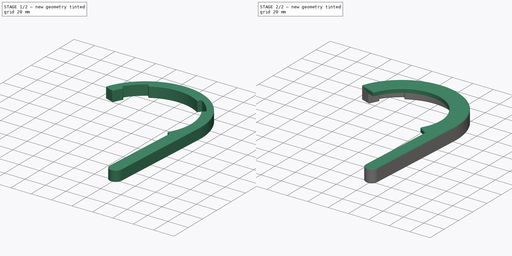
[diagram: build sequence overview — one tinted view per stage of 2, left to right]
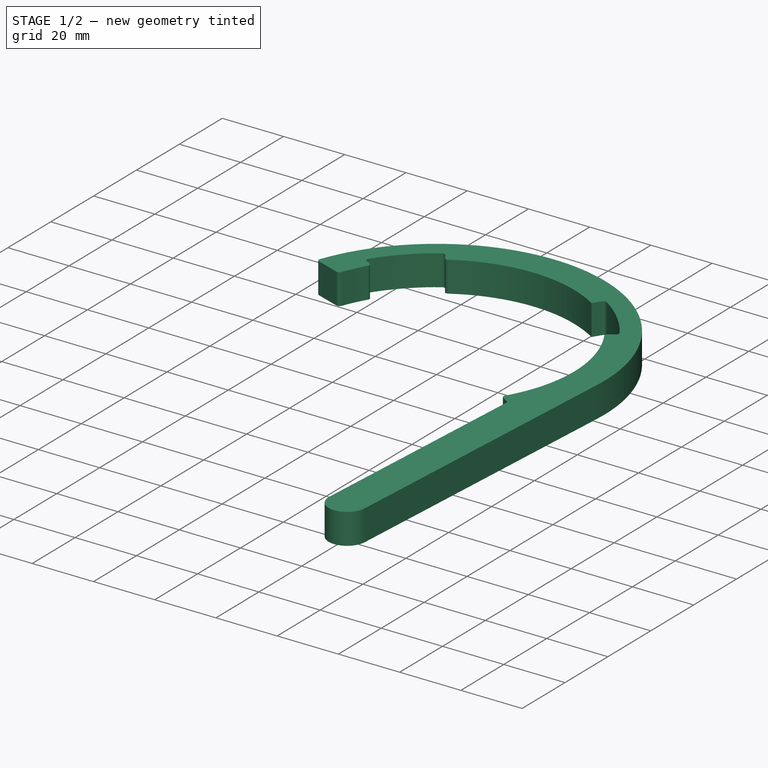
[diagram: stage 1 of 2 — iso view after this stage's code; geometry added in this stage tinted green]
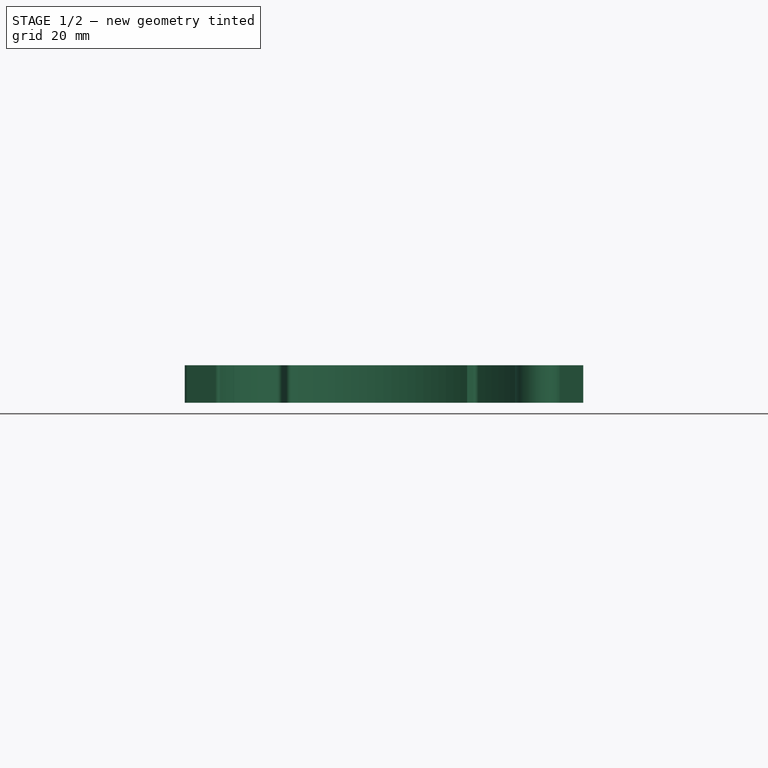
[diagram: stage 1 of 2 — front view after this stage's code; geometry added in this stage tinted green]
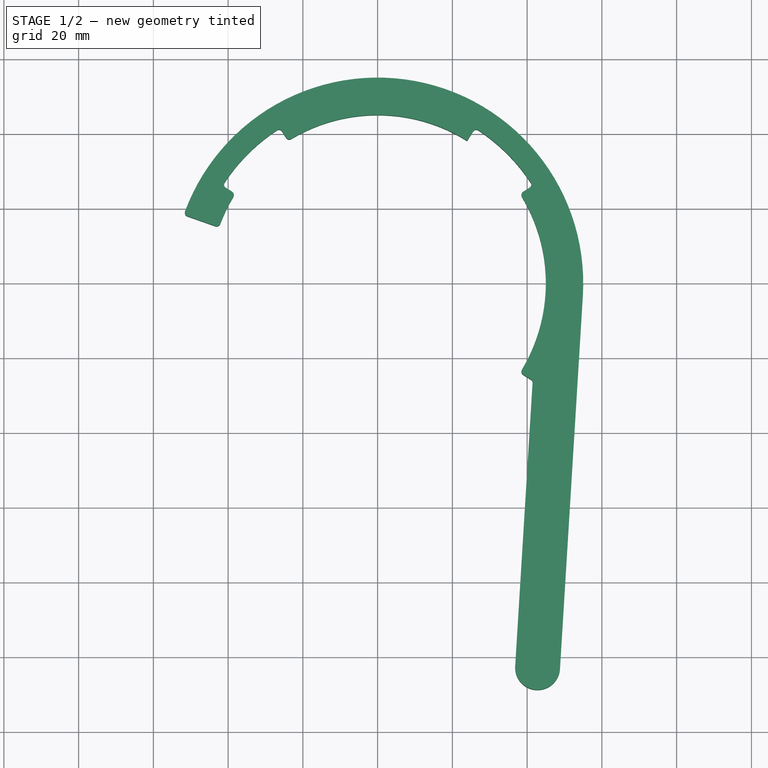
[diagram: stage 1 of 2 — top view after this stage's code; geometry added in this stage tinted green]
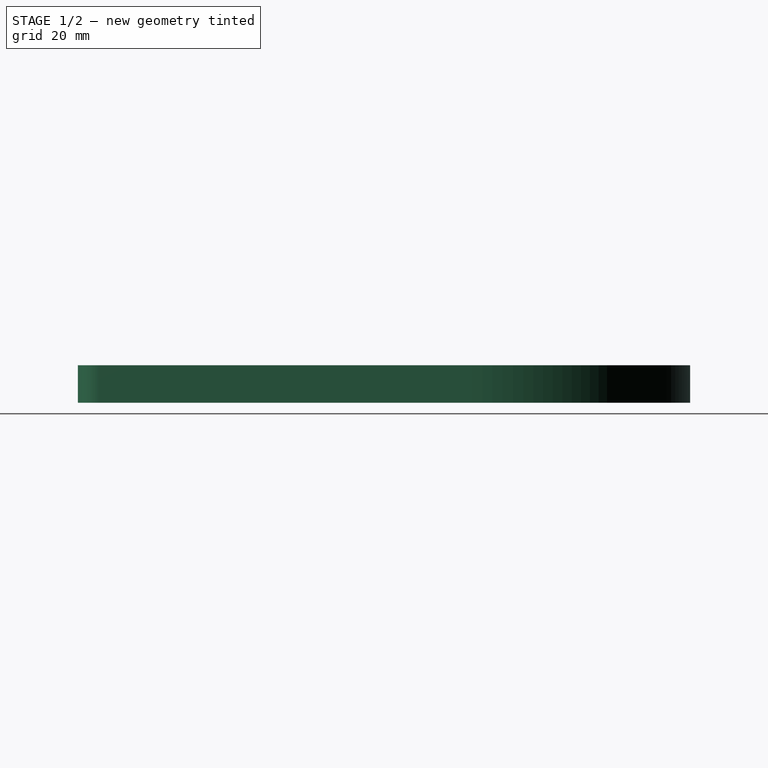
[diagram: stage 1 of 2 — right view after this stage's code; geometry added in this stage tinted green]
FCSTD DOCUMENT  (FreeCAD 1.0R39109 (Git))
Label: wrench
License: All rights reserved
LicenseURL: http://en.wikipedia.org/wiki/All_rights_reserved
objects: Sketcher::SketchObject×4, PartDesign::Pad×2, PartDesign::Fillet×1, PartDesign::Chamfer×1, PartDesign::Body×1
note: 21 computed .brp shape members not serialized (recipe doc carries the construction recipe); baked Part::Feature solids carry a one-line shape summary decoded from their .brp

FEATURE [Sketcher::SketchObject] Sketch
  ArcFitTolerance = 1e-06
  AttachmentSupport = -> [XY_Plane]
  FullyConstrained = true
  MakeInternals = false
  MapMode = 5
  sketch-geometry (26):
    g0: ArcOfCircle CenterX=0 CenterY=0 CenterZ=0 NormalX=0 NormalY=0 NormalZ=1 AngleXU=0 Radius=49 StartAngle=2.1321 EndAngle=2.58029
    g1: ArcOfCircle CenterX=0 CenterY=0 CenterZ=0 NormalX=0 NormalY=0 NormalZ=1 AngleXU=0 Radius=55 StartAngle=6.22195 EndAngle=9.08615
    g2: LineSegment StartX=26.0823 StartY=41.4815 StartZ=0 EndX=23.9531 EndY=38.0953 EndZ=0
    g3: LineSegment StartX=-41.4815 StartY=26.0823 StartZ=0 EndX=-38.0953 EndY=23.9531 EndZ=0
    g4: ArcOfCircle CenterX=0 CenterY=0 CenterZ=0 NormalX=0 NormalY=0 NormalZ=1 AngleXU=0 Radius=45 StartAngle=1.00949 EndAngle=2.1321
    g5: ArcOfCircle CenterX=0 CenterY=0 CenterZ=0 NormalX=0 NormalY=0 NormalZ=1 AngleXU=0 Radius=45 StartAngle=5.72188 EndAngle=6.84449
    g6: ArcOfCircle CenterX=0 CenterY=0 CenterZ=0 NormalX=0 NormalY=0 NormalZ=1 AngleXU=0 Radius=49 StartAngle=0.561305 EndAngle=1.00949
    g7: ArcOfCircle CenterX=0 CenterY=0 CenterZ=0 NormalX=0 NormalY=0 NormalZ=1 AngleXU=0 Radius=45 StartAngle=2.58029 EndAngle=2.80297
    g8: LineSegment StartX=38.0953 StartY=23.9531 StartZ=0 EndX=41.4815 EndY=26.0823 EndZ=0
    g9: LineSegment StartX=-23.9531 StartY=38.0953 StartZ=0 EndX=-26.0823 EndY=41.4815 EndZ=0
    g10: LineSegment StartX=38.0953 StartY=-23.9531 StartZ=0 EndX=41.4815 EndY=-26.0823 EndZ=0
    g11: LineSegment [constr] StartX=23.9531 StartY=38.0953 StartZ=0 EndX=-23.9531 EndY=38.0953 EndZ=0
    g12: LineSegment [constr] StartX=-23.9531 StartY=38.0953 StartZ=0 EndX=-38.0953 EndY=23.9531 EndZ=0
    g13: LineSegment [constr] StartX=-38.0953 StartY=23.9531 StartZ=0 EndX=-38.0953 EndY=-23.9531 EndZ=0
    g14: LineSegment [constr] StartX=-38.0953 StartY=-23.9531 StartZ=0 EndX=-23.9531 EndY=-38.0953 EndZ=0
    g15: LineSegment [constr] StartX=-23.9531 StartY=-38.0953 StartZ=0 EndX=23.9531 EndY=-38.0953 EndZ=0
    g16: LineSegment [constr] StartX=23.9531 StartY=-38.0953 StartZ=0 EndX=38.0953 EndY=-23.9531 EndZ=0
    g17: LineSegment [constr] StartX=38.0953 StartY=-23.9531 StartZ=0 EndX=38.0953 EndY=23.9531 EndZ=0
    g18: LineSegment [constr] StartX=38.0953 StartY=23.9531 StartZ=0 EndX=23.9531 EndY=38.0953 EndZ=0
    g19: LineSegment StartX=-42.4446 StartY=14.9485 StartZ=0 EndX=-51.8767 EndY=18.2704 EndZ=0
    g20: LineSegment StartX=54.8969 StartY=-3.36606 StartZ=0 EndX=48.7768 EndY=-103.179 EndZ=0
    g21: LineSegment StartX=41.4815 StartY=-26.0823 StartZ=0 EndX=36.7993 EndY=-102.444 EndZ=0
    g22: ArcOfCircle CenterX=42.788 CenterY=-102.811 CenterZ=0 NormalX=0 NormalY=0 NormalZ=1 AngleXU=0 Radius=6 StartAngle=3.08035 EndAngle=6.22195
    g23: LineSegment [constr] StartX=-42.4446 StartY=14.9485 StartZ=0 EndX=-38.0953 EndY=23.9531 EndZ=0
    g24: ArcOfCircle [constr] CenterX=0 CenterY=1.8e-15 CenterZ=0 NormalX=0 NormalY=0 NormalZ=1 AngleXU=0 Radius=45 StartAngle=2.80297 EndAngle=5.72188
    g25: ArcOfCircle [constr] CenterX=0 CenterY=1.8e-15 CenterZ=0 NormalX=0 NormalY=0 NormalZ=1 AngleXU=0 Radius=49 StartAngle=5.72188 EndAngle=6.84449
  constraints (71):
    c: Diameter(g0) = 98
    c: Diameter(g1) = 110
    c: PointOnObject(g4,g9)
    c: PointOnObject(g5,g8)
    c: Equal(g0,g6)
    c: Coincident(g0,g6)
    c: Coincident(g2,g6)
    c: Coincident(g8,g6)
    c: Equal(g5,g4)
    c: Coincident(g2,g4)
    c: PointOnObject(g8,g5)
    c: Coincident(g3,g7)
    c: PointOnObject(g9,g4)
    c: Coincident(g3,g0)
    c: Coincident(g9,g0)
    c: Coincident(g0,g-1)
    c: Coincident(g7,g0)
    c: Coincident(g1,g0)
    c: Coincident(g5,g0)
    c: Coincident(g4,g0)
    c: Perpendicular(g4,g9)
    c: Perpendicular(g4,g2)
    c: Perpendicular(g5,g8)
    c: Coincident(g10,g5)
    c: Perpendicular(g5,g10)
    c: Perpendicular(g7,g3)
    c: Diameter(g4) = 90
    c: Coincident(g2,g11)
    c: Coincident(g11,g4)
    c: Coincident(g11,g12)
    c: PointOnObject(g12,g7)
    c: Coincident(g12,g13)
    c: Coincident(g13,g14)
    c: Coincident(g14,g15)
    c: Horizontal(g15)
    c: Coincident(g15,g16)
    c: Coincident(g16,g5)
    c: Coincident(g16,g17)
    c: Coincident(g17,g5)
    c: Coincident(g17,g18)
    c: Coincident(g18,g11)
    c: Equal(g14,g12)
    c: Equal(g12,g18)
    c: Equal(g18,g16)
    c: Equal(g17,g11)
    c: Equal(g11,g13)
    c: Equal(g13,g15)
    c: Distance(g14) = 20
    c: PointOnObject(g3,g10)
    c: Parallel(g21,g20)
    c: Tangent(g22,g20) = 1.5708
    c: Tangent(g22,g21) = -1.5708
    c: Diameter(g22) = 12
    c: Coincident(g23,g19)
    c: Coincident(g23,g3)
    c: Distance(g23) = 10
    c: Distance(g20) = 100
    c: Tangent(g1,g20) = 1.5708
    c: Coincident(g1,g19)
    c: Perpendicular(g7,g19) = 4.71239
    c: PointOnObject(g24,g-2)
    c: Coincident(g24,g7)
    c: Coincident(g24,g5)
    c: Equal(g24,g5)
    c: PointOnObject(g13,g24)
    c: PointOnObject(g14,g24)
    c: PointOnObject(g15,g24)
    c: Coincident(g10,g21)
    c: Coincident(g25,g24)
    c: Coincident(g25,g6)
    c: Coincident(g25,g10)
FEATURE [Sketcher::SketchObject] Sketch001  label="master"
  ArcFitTolerance = 1e-06
  AttachmentSupport = -> [XY_Plane]
  FullyConstrained = true
  MakeInternals = false
  MapMode = 5
  sketch-geometry (25):
    g0: ArcOfCircle CenterX=0 CenterY=0 CenterZ=0 NormalX=0 NormalY=0 NormalZ=1 AngleXU=0 Radius=49 StartAngle=2.1321 EndAngle=2.58029
    g1: Circle CenterX=0 CenterY=0 CenterZ=0 NormalX=0 NormalY=0 NormalZ=1 AngleXU=0 Radius=55
    g2: LineSegment StartX=-41.4815 StartY=-26.0823 StartZ=0 EndX=-38.0953 EndY=-23.9531 EndZ=0
    g3: LineSegment StartX=26.0823 StartY=41.4815 StartZ=0 EndX=23.9531 EndY=38.0953 EndZ=0
    g4: LineSegment StartX=-41.4815 StartY=26.0823 StartZ=0 EndX=-38.0953 EndY=23.9531 EndZ=0
    g5: ArcOfCircle CenterX=0 CenterY=0 CenterZ=0 NormalX=0 NormalY=0 NormalZ=1 AngleXU=0 Radius=45 StartAngle=1.00949 EndAngle=2.1321
    g6: ArcOfCircle CenterX=0 CenterY=0 CenterZ=0 NormalX=0 NormalY=0 NormalZ=1 AngleXU=0 Radius=45 StartAngle=5.72188 EndAngle=6.84449
    g7: ArcOfCircle CenterX=0 CenterY=0 CenterZ=0 NormalX=0 NormalY=0 NormalZ=1 AngleXU=0 Radius=45 StartAngle=4.15108 EndAngle=5.27369
    g8: ArcOfCircle CenterX=0 CenterY=0 CenterZ=0 NormalX=0 NormalY=0 NormalZ=1 AngleXU=0 Radius=49 StartAngle=0.561305 EndAngle=1.00949
    g9: LineSegment StartX=26.0823 StartY=-41.4815 StartZ=0 EndX=23.9531 EndY=-38.0953 EndZ=0
    g10: ArcOfCircle CenterX=0 CenterY=0 CenterZ=0 NormalX=0 NormalY=0 NormalZ=1 AngleXU=0 Radius=49 StartAngle=5.27369 EndAngle=5.72188
    g11: ArcOfCircle CenterX=0 CenterY=0 CenterZ=0 NormalX=0 NormalY=0 NormalZ=1 AngleXU=0 Radius=45 StartAngle=2.58029 EndAngle=3.7029
    g12: ArcOfCircle CenterX=0 CenterY=0 CenterZ=0 NormalX=0 NormalY=0 NormalZ=1 AngleXU=0 Radius=49 StartAngle=3.7029 EndAngle=4.15108
    g13: LineSegment StartX=-23.9531 StartY=-38.0953 StartZ=0 EndX=-26.0823 EndY=-41.4815 EndZ=0
    g14: LineSegment StartX=38.0953 StartY=23.9531 StartZ=0 EndX=41.4815 EndY=26.0823 EndZ=0
    g15: LineSegment StartX=-23.9531 StartY=38.0953 StartZ=0 EndX=-26.0823 EndY=41.4815 EndZ=0
    g16: LineSegment StartX=38.0953 StartY=-23.9531 StartZ=0 EndX=41.4815 EndY=-26.0823 EndZ=0
    g17: LineSegment [constr] StartX=23.9531 StartY=38.0953 StartZ=0 EndX=-23.9531 EndY=38.0953 EndZ=0
    g18: LineSegment [constr] StartX=-23.9531 StartY=38.0953 StartZ=0 EndX=-38.0953 EndY=23.9531 EndZ=0
    g19: LineSegment [constr] StartX=-38.0953 StartY=23.9531 StartZ=0 EndX=-38.0953 EndY=-23.9531 EndZ=0
    g20: LineSegment [constr] StartX=-38.0953 StartY=-23.9531 StartZ=0 EndX=-23.9531 EndY=-38.0953 EndZ=0
    g21: LineSegment [constr] StartX=-23.9531 StartY=-38.0953 StartZ=0 EndX=23.9531 EndY=-38.0953 EndZ=0
    g22: LineSegment [constr] StartX=23.9531 StartY=-38.0953 StartZ=0 EndX=38.0953 EndY=-23.9531 EndZ=0
    g23: LineSegment [constr] StartX=38.0953 StartY=-23.9531 StartZ=0 EndX=38.0953 EndY=23.9531 EndZ=0
    g24: LineSegment [constr] StartX=38.0953 StartY=23.9531 StartZ=0 EndX=23.9531 EndY=38.0953 EndZ=0
  constraints (71):
    c: Diameter(g0) = 98
    c: Diameter(g1) = 110
    c: PointOnObject(g5,g15)
    c: PointOnObject(g6,g14)
    c: PointOnObject(g7,g13)
    c: Equal(g0,g8)
    c: Coincident(g0,g8)
    c: Coincident(g3,g8)
    c: Coincident(g14,g8)
    c: PointOnObject(g9,g10)
    c: Equal(g0,g10)
    c: PointOnObject(g10,g9)
    c: Coincident(g0,g10)
    c: Equal(g7,g11)
    c: Equal(g7,g6)
    c: Equal(g6,g5)
    c: Equal(g0,g12)
    c: Coincident(g0,g12)
    c: Coincident(g3,g5)
    c: PointOnObject(g13,g7)
    c: PointOnObject(g14,g6)
    c: Coincident(g9,g7)
    c: Coincident(g2,g11)
    c: Coincident(g4,g11)
    c: PointOnObject(g15,g5)
    c: Coincident(g13,g12)
    c: Coincident(g2,g12)
    c: Coincident(g4,g0)
    c: Coincident(g15,g0)
    c: Coincident(g7,g0)
    c: Coincident(g0,g-1)
    c: Coincident(g11,g0)
    c: Coincident(g1,g0)
    c: Coincident(g6,g0)
    c: Coincident(g5,g0)
    c: Perpendicular(g5,g15)
    c: Perpendicular(g5,g3)
    c: Perpendicular(g6,g14)
    c: Coincident(g16,g6)
    c: Perpendicular(g6,g16)
    c: Perpendicular(g7,g9)
    c: Perpendicular(g7,g13)
    c: Perpendicular(g11,g2)
    c: Perpendicular(g11,g4)
    c: Diameter(g5) = 90
    c: Coincident(g3,g17)
    c: Coincident(g17,g5)
    c: Coincident(g17,g18)
    c: PointOnObject(g18,g11)
    c: Coincident(g18,g19)
    c: Coincident(g19,g2)
    c: Coincident(g19,g20)
    c: Coincident(g20,g7)
    c: Coincident(g20,g21)
    c: Coincident(g21,g7)
    c: Horizontal(g21)
    c: Coincident(g21,g22)
    c: Coincident(g22,g6)
    c: Coincident(g22,g23)
    c: Coincident(g23,g6)
    c: Coincident(g23,g24)
    c: Coincident(g24,g17)
    c: Equal(g20,g18)
    c: Equal(g18,g24)
    c: Equal(g24,g22)
    c: Equal(g23,g17)
    c: Equal(g17,g19)
    c: Equal(g19,g21)
    c: Coincident(g10,g16)
    c: Distance(g20) = 20
    c: PointOnObject(g4,g16)
FEATURE [Sketcher::SketchObject] Sketch002  label="master 2"
  ArcFitTolerance = 1e-06
  AttachmentSupport = -> [XY_Plane]
  FullyConstrained = true
  MakeInternals = false
  MapMode = 5
  sketch-geometry (30):
    g0: ArcOfCircle CenterX=0 CenterY=0 CenterZ=0 NormalX=0 NormalY=0 NormalZ=1 AngleXU=0 Radius=49 StartAngle=2.1321 EndAngle=2.58029
    g1: Circle CenterX=0 CenterY=0 CenterZ=0 NormalX=0 NormalY=0 NormalZ=1 AngleXU=0 Radius=55
    g2: LineSegment StartX=-41.4815 StartY=-26.0823 StartZ=0 EndX=-38.0953 EndY=-23.9531 EndZ=0
    g3: LineSegment StartX=26.0823 StartY=41.4815 StartZ=0 EndX=23.9531 EndY=38.0953 EndZ=0
    g4: LineSegment StartX=-41.4815 StartY=26.0823 StartZ=0 EndX=-38.0953 EndY=23.9531 EndZ=0
    g5: ArcOfCircle CenterX=0 CenterY=0 CenterZ=0 NormalX=0 NormalY=0 NormalZ=1 AngleXU=0 Radius=45 StartAngle=1.00949 EndAngle=2.1321
    g6: ArcOfCircle CenterX=0 CenterY=0 CenterZ=0 NormalX=0 NormalY=0 NormalZ=1 AngleXU=0 Radius=45 StartAngle=5.72188 EndAngle=6.84449
    g7: ArcOfCircle CenterX=0 CenterY=0 CenterZ=0 NormalX=0 NormalY=0 NormalZ=1 AngleXU=0 Radius=45 StartAngle=4.15108 EndAngle=5.27369
    g8: ArcOfCircle CenterX=0 CenterY=0 CenterZ=0 NormalX=0 NormalY=0 NormalZ=1 AngleXU=0 Radius=49 StartAngle=0.561305 EndAngle=1.00949
    g9: LineSegment StartX=26.0823 StartY=-41.4815 StartZ=0 EndX=23.9531 EndY=-38.0953 EndZ=0
    g10: ArcOfCircle CenterX=0 CenterY=0 CenterZ=0 NormalX=0 NormalY=0 NormalZ=1 AngleXU=0 Radius=49 StartAngle=5.27369 EndAngle=5.72188
    g11: ArcOfCircle CenterX=0 CenterY=0 CenterZ=0 NormalX=0 NormalY=0 NormalZ=1 AngleXU=0 Radius=45 StartAngle=2.58029 EndAngle=3.7029
    g12: ArcOfCircle CenterX=0 CenterY=0 CenterZ=0 NormalX=0 NormalY=0 NormalZ=1 AngleXU=0 Radius=49 StartAngle=3.7029 EndAngle=4.15108
    g13: LineSegment StartX=-23.9531 StartY=-38.0953 StartZ=0 EndX=-26.0823 EndY=-41.4815 EndZ=0
    g14: LineSegment StartX=38.0953 StartY=23.9531 StartZ=0 EndX=41.4815 EndY=26.0823 EndZ=0
    g15: LineSegment StartX=-23.9531 StartY=38.0953 StartZ=0 EndX=-26.0823 EndY=41.4815 EndZ=0
    g16: LineSegment StartX=38.0953 StartY=-23.9531 StartZ=0 EndX=41.4815 EndY=-26.0823 EndZ=0
    g17: LineSegment [constr] StartX=23.9531 StartY=38.0953 StartZ=0 EndX=-23.9531 EndY=38.0953 EndZ=0
    g18: LineSegment [constr] StartX=-23.9531 StartY=38.0953 StartZ=0 EndX=-38.0953 EndY=23.9531 EndZ=0
    g19: LineSegment [constr] StartX=-38.0953 StartY=23.9531 StartZ=0 EndX=-38.0953 EndY=-23.9531 EndZ=0
    g20: LineSegment [constr] StartX=-38.0953 StartY=-23.9531 StartZ=0 EndX=-23.9531 EndY=-38.0953 EndZ=0
    g21: LineSegment [constr] StartX=-23.9531 StartY=-38.0953 StartZ=0 EndX=23.9531 EndY=-38.0953 EndZ=0
    g22: LineSegment [constr] StartX=23.9531 StartY=-38.0953 StartZ=0 EndX=38.0953 EndY=-23.9531 EndZ=0
    g23: LineSegment [constr] StartX=38.0953 StartY=-23.9531 StartZ=0 EndX=38.0953 EndY=23.9531 EndZ=0
    g24: LineSegment [constr] StartX=38.0953 StartY=23.9531 StartZ=0 EndX=23.9531 EndY=38.0953 EndZ=0
    g25: LineSegment StartX=-42.4446 StartY=14.9485 StartZ=0 EndX=-51.8767 EndY=18.2704 EndZ=0
    g26: LineSegment StartX=54.8969 StartY=-3.36606 StartZ=0 EndX=48.7768 EndY=-103.179 EndZ=0
    g27: LineSegment StartX=41.4815 StartY=-26.0823 StartZ=0 EndX=36.7993 EndY=-102.444 EndZ=0
    g28: ArcOfCircle CenterX=42.788 CenterY=-102.811 CenterZ=0 NormalX=0 NormalY=0 NormalZ=1 AngleXU=0 Radius=6 StartAngle=3.08035 EndAngle=6.22195
    g29: LineSegment [constr] StartX=-42.4446 StartY=14.9485 StartZ=0 EndX=-38.0953 EndY=23.9531 EndZ=0
  constraints (84):
    c: Diameter(g0) = 98
    c: Diameter(g1) = 110
    c: PointOnObject(g5,g15)
    c: PointOnObject(g6,g14)
    c: PointOnObject(g7,g13)
    c: Equal(g0,g8)
    c: Coincident(g0,g8)
    c: Coincident(g3,g8)
    c: Coincident(g14,g8)
    c: PointOnObject(g9,g10)
    c: Equal(g0,g10)
    c: PointOnObject(g10,g9)
    c: Coincident(g0,g10)
    c: Equal(g7,g11)
    c: Equal(g7,g6)
    c: Equal(g6,g5)
    c: Equal(g0,g12)
    c: Coincident(g0,g12)
    c: Coincident(g3,g5)
    c: PointOnObject(g13,g7)
    c: PointOnObject(g14,g6)
    c: Coincident(g9,g7)
    c: Coincident(g2,g11)
    c: Coincident(g4,g11)
    c: PointOnObject(g15,g5)
    c: Coincident(g13,g12)
    c: Coincident(g2,g12)
    c: Coincident(g4,g0)
    c: Coincident(g15,g0)
    c: Coincident(g7,g0)
    c: Coincident(g0,g-1)
    c: Coincident(g11,g0)
    c: Coincident(g1,g0)
    c: Coincident(g6,g0)
    c: Coincident(g5,g0)
    c: Perpendicular(g5,g15)
    c: Perpendicular(g5,g3)
    c: Perpendicular(g6,g14)
    c: Coincident(g16,g6)
    c: Perpendicular(g6,g16)
    c: Perpendicular(g7,g9)
    c: Perpendicular(g7,g13)
    c: Perpendicular(g11,g2)
    c: Perpendicular(g11,g4)
    c: Diameter(g5) = 90
    c: Coincident(g3,g17)
    c: Coincident(g17,g5)
    c: Coincident(g17,g18)
    c: PointOnObject(g18,g11)
    c: Coincident(g18,g19)
    c: Coincident(g19,g2)
    c: Coincident(g19,g20)
    c: Coincident(g20,g7)
    c: Coincident(g20,g21)
    c: Coincident(g21,g7)
    c: Horizontal(g21)
    c: Coincident(g21,g22)
    c: Coincident(g22,g6)
    c: Coincident(g22,g23)
    c: Coincident(g23,g6)
    c: Coincident(g23,g24)
    c: Coincident(g24,g17)
    c: Equal(g20,g18)
    c: Equal(g18,g24)
    c: Equal(g24,g22)
    c: Equal(g23,g17)
    c: Equal(g17,g19)
    c: Equal(g19,g21)
    c: Coincident(g10,g16)
    c: Distance(g20) = 20
    c: PointOnObject(g4,g16)
    c: PointOnObject(g25,g11)
    c: PointOnObject(g25,g1)
    c: Perpendicular(g11,g25)
    c: Tangent(g26,g1) = 1.5708
    c: Coincident(g27,g10)
    c: Parallel(g27,g26)
    c: Tangent(g28,g26) = 1.5708
    c: Tangent(g28,g27) = -1.5708
    c: Diameter(g28) = 12
    c: Coincident(g29,g25)
    c: Coincident(g29,g4)
    c: Distance(g29) = 10
    c: Distance(g26) = 100
FEATURE [PartDesign::Pad] Pad
  Direction = (0,0,1)
  Length = 10
  Length2 = 10
  Profile = -> Sketch
  ReferenceAxis = -> Sketch [N_Axis]
  Refine = true
  Suppressed = false
  Type = 0
FEATURE [PartDesign::Fillet] Fillet
  Base = -> Pad [Edge26,Edge29,Edge23,Edge20,Edge17,Edge14,Edge8,Edge5,Edge2,Edge1,Edge41]
  BaseFeature = -> Pad
  Radius = 1
  Refine = true
  SupportTransform = false
  Suppressed = false
  UseAllEdges = false
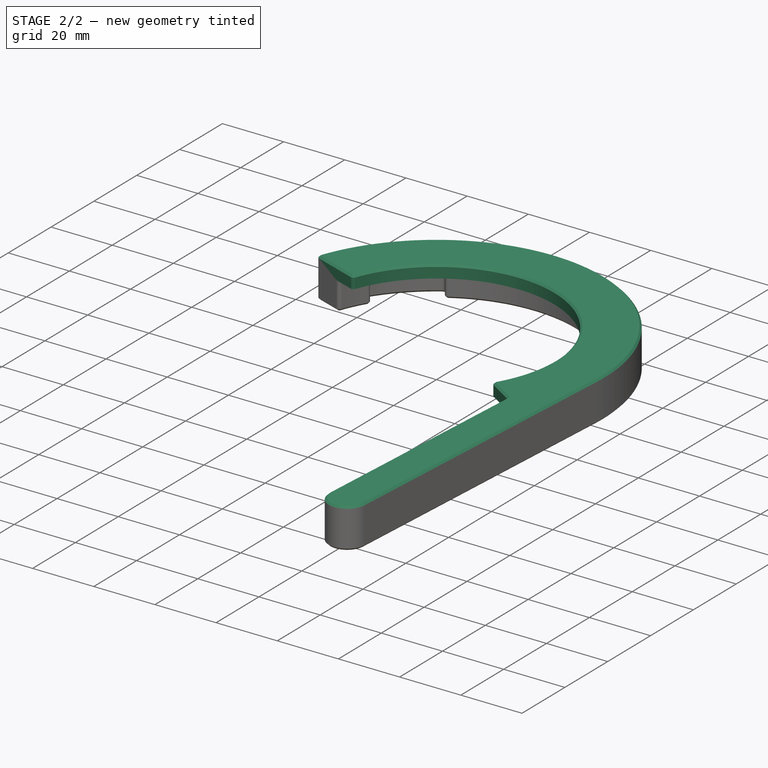
[diagram: stage 2 of 2 — iso view after this stage's code; geometry added in this stage tinted green]
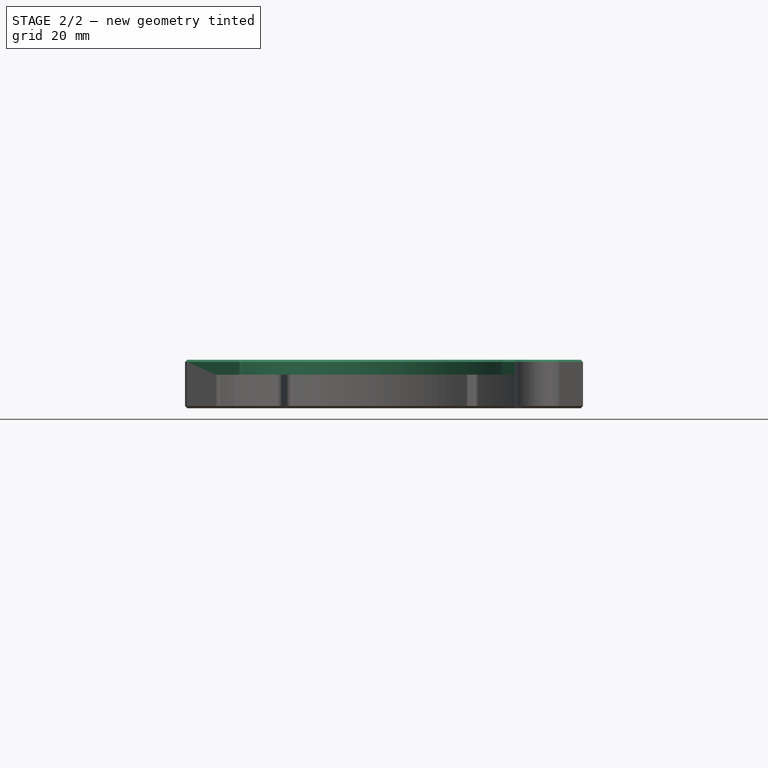
[diagram: stage 2 of 2 — front view after this stage's code; geometry added in this stage tinted green]
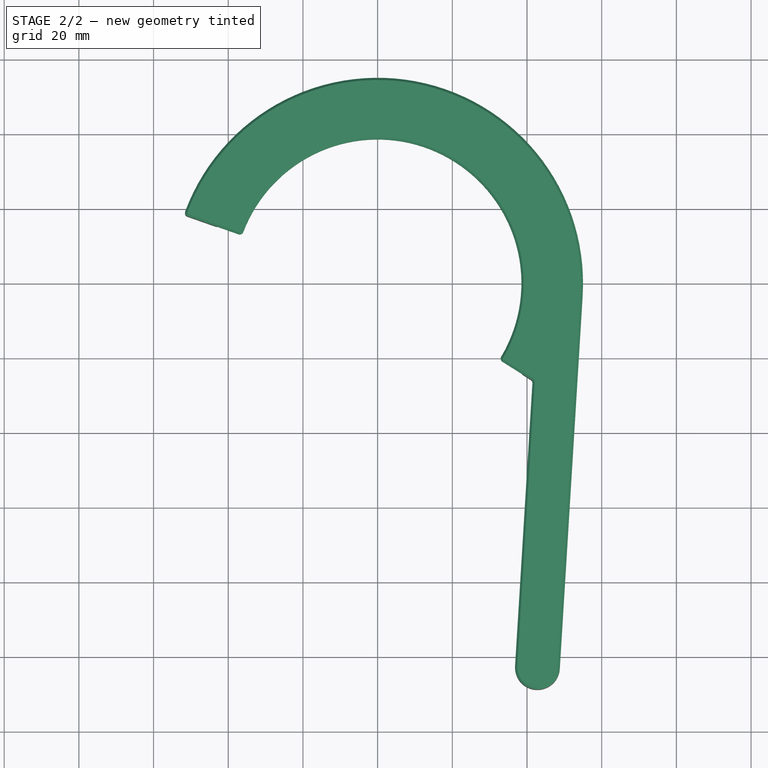
[diagram: stage 2 of 2 — top view after this stage's code; geometry added in this stage tinted green]
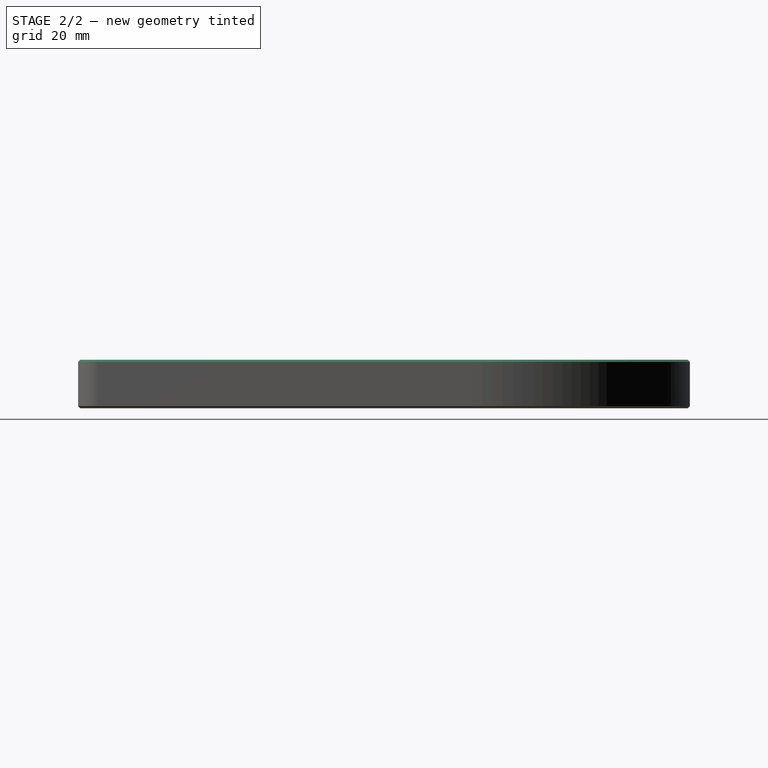
[diagram: stage 2 of 2 — right view after this stage's code; geometry added in this stage tinted green]
FEATURE [Sketcher::SketchObject] Sketch003
  ArcFitTolerance = 1e-06
  AttachmentOffset = pos=(0,0,-1) rot=(0,0,1;0rad)
  AttachmentSupport = -> [Fillet]
  ExternalGeometry = -> [Fillet]
  FullyConstrained = true
  MakeInternals = false
  MapMode = 5
  Placement = pos=(0,0,9) rot=(0,0,1;0rad)
  sketch-geometry (12):
    g0: ArcOfCircle CenterX=0 CenterY=0 CenterZ=0 NormalX=0 NormalY=0 NormalZ=1 AngleXU=0 Radius=38.5 StartAngle=5.7472 EndAngle=9.06084
    g1: ArcOfCircle CenterX=0 CenterY=0 CenterZ=0 NormalX=0 NormalY=0 NormalZ=1 AngleXU=0 Radius=55 StartAngle=6.22195 EndAngle=9.06764
    g2: LineSegment StartX=-37.245 StartY=13.1172 StartZ=0 EndX=-50.9248 EndY=17.9351 EndZ=0
    g3: LineSegment StartX=33.4284 StartY=-21.0188 StartZ=0 EndX=40.9794 EndY=-25.7666 EndZ=0
    g4: LineSegment StartX=41.4452 StartY=-26.6743 StartZ=0 EndX=36.7993 EndY=-102.444 EndZ=0
    g5: ArcOfCircle CenterX=42.788 CenterY=-102.811 CenterZ=0 NormalX=0 NormalY=0 NormalZ=1 AngleXU=0 Radius=6 StartAngle=3.08035 EndAngle=6.22195
    g6: LineSegment StartX=48.7768 StartY=-103.179 StartZ=0 EndX=54.8969 EndY=-3.36599 EndZ=0
    g7: ArcOfCircle CenterX=33.9607 CenterY=-20.1722 CenterZ=0 NormalX=0 NormalY=0 NormalZ=1 AngleXU=0 Radius=1 StartAngle=2.60561 EndAngle=4.15108
    g8: ArcOfCircle CenterX=40.4471 CenterY=-26.6131 CenterZ=0 NormalX=0 NormalY=0 NormalZ=1 AngleXU=0 Radius=1 StartAngle=6.22195 EndAngle=7.29268
    g9: GeomPoint [constr] X=41.4815 Y=-26.0823 Z=0
    g10: ArcOfCircle CenterX=-36.9128 CenterY=14.0605 CenterZ=0 NormalX=0 NormalY=0 NormalZ=1 AngleXU=0 Radius=1 StartAngle=4.37377 EndAngle=5.91924
    g11: ArcOfCircle CenterX=-50.5926 CenterY=18.8783 CenterZ=0 NormalX=0 NormalY=0 NormalZ=1 AngleXU=0 Radius=1 StartAngle=2.78445 EndAngle=4.37377
  constraints (28):
    c: Coincident(g0,g-1)
    c: Coincident(g1,g0)
    c: Perpendicular(g0,g2)
    c: PointOnObject(g1,g-4)
    c: Diameter(g0) = 77
    c: Tangent(g4,g5) = -1.5708
    c: Tangent(g5,g6) = -1.5708
    c: PointOnObject(g-5,g3)
    c: Tangent(g3,g7) = -1.5708
    c: Tangent(g0,g7) = 1.5708
    c: PointOnObject(g9,g3)
    c: PointOnObject(g9,g4)
    c: Tangent(g3,g8) = 1.5708
    c: Tangent(g4,g8) = 1.5708
    c: Equal(g-7,g8)
    c: Equal(g8,g7)
    c: PointOnObject(g-5,g3)
    c: PointOnObject(g4,g-6)
    c: PointOnObject(g4,g-6)
    c: Coincident(g6,g1)
    c: Coincident(g5,g-4)
    c: Tangent(g2,g10) = 1.5708
    c: Tangent(g0,g10) = 1.5708
    c: Equal(g10,g7)
    c: Tangent(g2,g11) = 1.5708
    c: Tangent(g1,g11) = -1.5708
    c: Equal(g10,g11)
    c: Coincident(g1,g-3)
FEATURE [PartDesign::Pad] Pad001
  BaseFeature = -> Fillet
  Direction = (0,0,1)
  Length = 4
  Length2 = 10
  Profile = -> Sketch003
  ReferenceAxis = -> Sketch003 [N_Axis]
  Refine = true
  Suppressed = false
  Type = 0
FEATURE [PartDesign::Chamfer] Chamfer
  Angle = 45
  Base = -> Pad001 [Face24,Face2]
  BaseFeature = -> Pad001
  ChamferType = 0
  FlipDirection = false
  Refine = true
  Size = 0.6
  Size2 = 1
  SupportTransform = false
  Suppressed = false
  UseAllEdges = false
FEATURE [PartDesign::Body] Body
  AllowCompound = false
  Group = -> [Sketch,Pad,Fillet,Sketch003,Pad001,Chamfer]
  Origin = -> Origin
  Tip = -> Chamfer
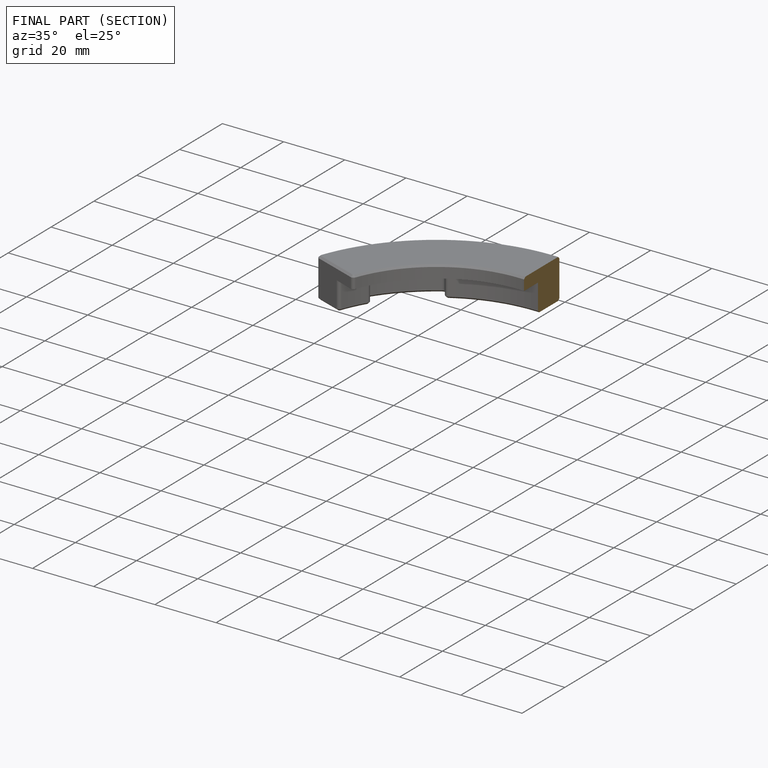
[diagram: finished part — half-section view (interior)]
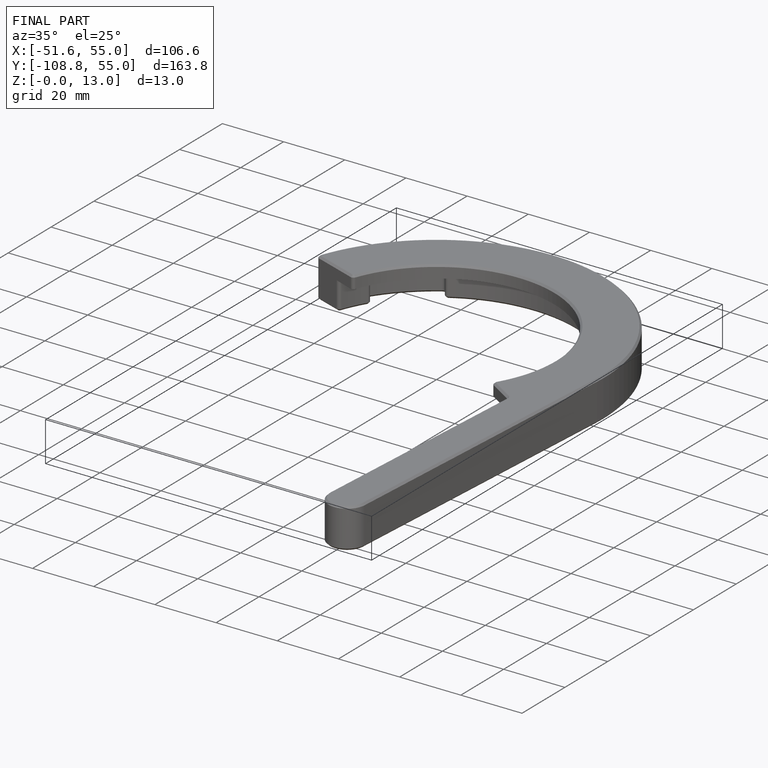
[diagram: finished part — iso view with bounding-box wireframe]
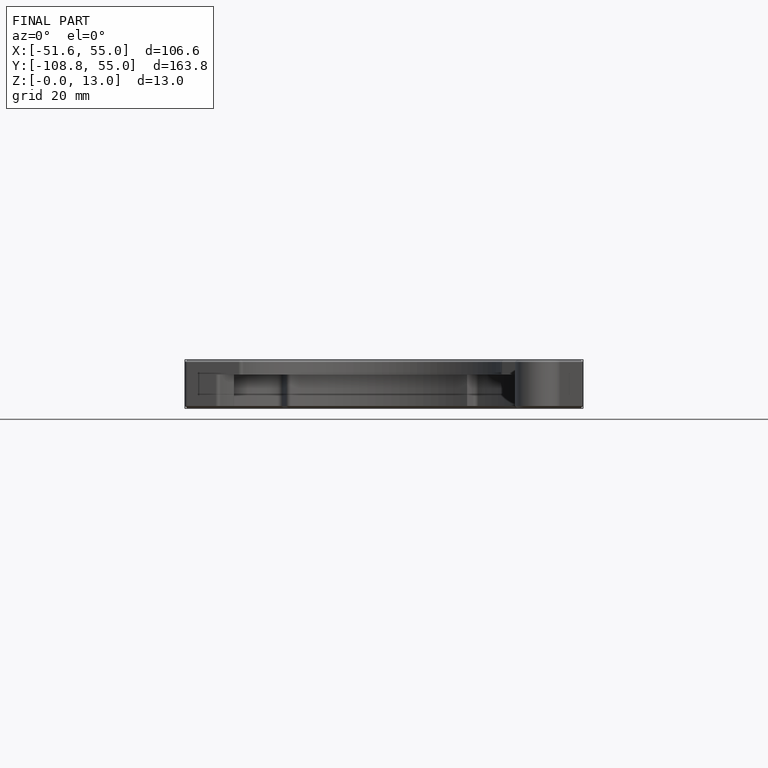
[diagram: finished part — front view with bounding-box wireframe]
